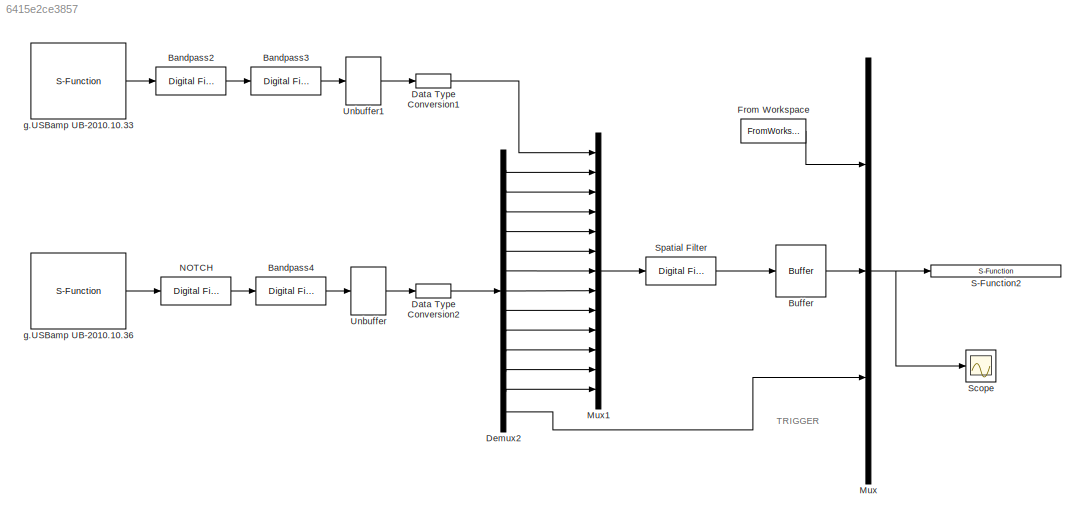
MODEL slx_6415e2ce3857
KIND model
BLOCK [Reference] Bandpass2  REF=dsparch4/Digital Filter
  AllPoleFiltStruct = Direct form
  BiQuadCoeffs = [1 0.3 0.4 1 0.1 0.2]
  CoeffSource = Specify via dialog
  DenCoeffs = [1 0.1]
  FIRFiltStruct = Direct form
  FiltPerSampPopup = One filter per frame
  FilterSource = dfilt object
  IC = 0
  ICden = 0
  ICnum = 0
  IIRFiltStruct = Direct form II transposed
  InputProcessing = Inherited (this choice will be removed - see release notes)
  LatticeCoeffs = [0.2 0.4]
  LockScale = off
  NumCoeffs = [1 2]
  Ports = [1, 1]
  ScaleValues = 1
  SourceBlock = dsparch4/Digital Filter
  SourceType = Digital Filter
  TypePopup = IIR (poles & zeros)
  UserDataPersistent = on
  accumFracLength = 30
  accumMode = Same as product output
  accumWordLength = 32
  additionalParams = off
  allowOverrides = on
  denIgnore = on
  dfiltObjectName = HdNotch
  firstCoeffFracLength = 15
  firstCoeffMode = Same word length as input
  firstCoeffWordLength = 16
  memoryFracLength = 15
  memoryMode = Same as accumulator
  memoryWordLength = 16
  multiplicandFracLength = 30
  multiplicandMode = Same as output
  multiplicandWordLength = 32
  outputFracLength = 15
  outputMode = Same as accumulator
  outputWordLength = 16
  overflowMode = off
  prodOutputFracLength = 30
  prodOutputMode = Same as input
  prodOutputWordLength = 32
  roundingMode = Floor
  scaleValueFracLength = 14
  secondCoeffFracLength = 15
  secondCoeffMode = Same as numerator
  secondCoeffWordLength = 16
  showAcc = off
  showCoeff = off
  showMem = off
  showMpy = off
  showOut = off
  stageIOMode = Same as input
  stageIOWordLength = 16
  stageInFracLength = 15
  stageOutFracLength = 15
  tapSumFracLength = 30
  tapSumMode = Same as input
  tapSumWordLength = 32
  thirdCoeffFracLength = 15
  thirdCoeffMode = Same as input
  thirdCoeffWordLength = 16
BLOCK [Reference] Bandpass3  REF=dsparch4/Digital Filter
  AllPoleFiltStruct = Direct form
  BiQuadCoeffs = [1 0.3 0.4 1 0.1 0.2]
  CoeffSource = Specify via dialog
  DenCoeffs = [1 0.1]
  FIRFiltStruct = Direct form
  FiltPerSampPopup = One filter per frame
  FilterSource = dfilt object
  IC = 0
  ICden = 0
  ICnum = 0
  IIRFiltStruct = Direct form II transposed
  InputProcessing = Inherited (this choice will be removed - see release notes)
  LatticeCoeffs = [0.2 0.4]
  LockScale = off
  NumCoeffs = [1 2]
  Ports = [1, 1]
  ScaleValues = 1
  SourceBlock = dsparch4/Digital Filter
  SourceType = Digital Filter
  TypePopup = IIR (poles & zeros)
  UserDataPersistent = on
  accumFracLength = 30
  accumMode = Same as product output
  accumWordLength = 32
  additionalParams = off
  allowOverrides = on
  denIgnore = on
  dfiltObjectName = BP_SEP
  firstCoeffFracLength = 15
  firstCoeffMode = Same word length as input
  firstCoeffWordLength = 16
  memoryFracLength = 15
  memoryMode = Same as accumulator
  memoryWordLength = 16
  multiplicandFracLength = 30
  multiplicandMode = Same as output
  multiplicandWordLength = 32
  outputFracLength = 15
  outputMode = Same as accumulator
  outputWordLength = 16
  overflowMode = off
  prodOutputFracLength = 30
  prodOutputMode = Same as input
  prodOutputWordLength = 32
  roundingMode = Floor
  scaleValueFracLength = 14
  secondCoeffFracLength = 15
  secondCoeffMode = Same as numerator
  secondCoeffWordLength = 16
  showAcc = off
  showCoeff = off
  showMem = off
  showMpy = off
  showOut = off
  stageIOMode = Same as input
  stageIOWordLength = 16
  stageInFracLength = 15
  stageOutFracLength = 15
  tapSumFracLength = 30
  tapSumMode = Same as input
  tapSumWordLength = 32
  thirdCoeffFracLength = 15
  thirdCoeffMode = Same as input
  thirdCoeffWordLength = 16
BLOCK [Reference] Bandpass4  REF=dsparch4/Digital Filter
  AllPoleFiltStruct = Direct form
  BiQuadCoeffs = [1 0.3 0.4 1 0.1 0.2]
  CoeffSource = Specify via dialog
  DenCoeffs = [1 0.1]
  FIRFiltStruct = Direct form
  FiltPerSampPopup = One filter per frame
  FilterSource = dfilt object
  IC = 0
  ICden = 0
  ICnum = 0
  IIRFiltStruct = Direct form II transposed
  InputProcessing = Inherited (this choice will be removed - see release notes)
  LatticeCoeffs = [0.2 0.4]
  LockScale = off
  NumCoeffs = [1 2]
  Ports = [1, 1]
  ScaleValues = 1
  SourceBlock = dsparch4/Digital Filter
  SourceType = Digital Filter
  TypePopup = IIR (poles & zeros)
  UserDataPersistent = on
  accumFracLength = 30
  accumMode = Same as product output
  accumWordLength = 32
  additionalParams = off
  allowOverrides = on
  denIgnore = on
  dfiltObjectName = BP_SEP
  firstCoeffFracLength = 15
  firstCoeffMode = Same word length as input
  firstCoeffWordLength = 16
  memoryFracLength = 15
  memoryMode = Same as accumulator
  memoryWordLength = 16
  multiplicandFracLength = 30
  multiplicandMode = Same as output
  multiplicandWordLength = 32
  outputFracLength = 15
  outputMode = Same as accumulator
  outputWordLength = 16
  overflowMode = off
  prodOutputFracLength = 30
  prodOutputMode = Same as input
  prodOutputWordLength = 32
  roundingMode = Floor
  scaleValueFracLength = 14
  secondCoeffFracLength = 15
  secondCoeffMode = Same as numerator
  secondCoeffWordLength = 16
  showAcc = off
  showCoeff = off
  showMem = off
  showMpy = off
  showOut = off
  stageIOMode = Same as input
  stageIOWordLength = 16
  stageInFracLength = 15
  stageOutFracLength = 15
  tapSumFracLength = 30
  tapSumMode = Same as input
  tapSumWordLength = 32
  thirdCoeffFracLength = 15
  thirdCoeffMode = Same as input
  thirdCoeffWordLength = 16
BLOCK [Buffer] Buffer
  TreatMby1Signals = One channel
BLOCK [DataTypeConversion] Data Type Conversion1
  OutDataTypeStr = double
  RndMeth = Floor
  SaturateOnIntegerOverflow = off
BLOCK [DataTypeConversion] Data Type Conversion2
  OutDataTypeStr = double
  RndMeth = Floor
  SaturateOnIntegerOverflow = off
BLOCK [Demux] Demux2
  DisplayOption = bar
  Outputs = 13
  Ports = [1, 13]
BLOCK [FromWorkspace] From Workspace
  SampleTime = 1/2400
  VariableName = TEMPLATE
  ZeroCross = on
BLOCK [Mux] Mux
  DisplayOption = bar
  Inputs = 3
  Ports = [3, 1]
BLOCK [Mux] Mux1
  DisplayOption = bar
  Inputs = 13
  Ports = [13, 1]
BLOCK [Reference] NOTCH  REF=dsparch4/Digital Filter
  AllPoleFiltStruct = Direct form
  BiQuadCoeffs = [1 0.3 0.4 1 0.1 0.2]
  CoeffSource = Specify via dialog
  DenCoeffs = [1 0.1]
  FIRFiltStruct = Direct form
  FiltPerSampPopup = One filter per frame
  FilterSource = dfilt object
  IC = 0
  ICden = 0
  ICnum = 0
  IIRFiltStruct = Direct form II transposed
  InputProcessing = Inherited (this choice will be removed - see release notes)
  LatticeCoeffs = [0.2 0.4]
  LockScale = off
  NumCoeffs = [1 2]
  Ports = [1, 1]
  ScaleValues = 1
  SourceBlock = dsparch4/Digital Filter
  SourceType = Digital Filter
  TypePopup = IIR (poles & zeros)
  UserDataPersistent = on
  accumFracLength = 30
  accumMode = Same as product output
  accumWordLength = 32
  additionalParams = off
  allowOverrides = on
  denIgnore = on
  dfiltObjectName = HdNotch
  firstCoeffFracLength = 15
  firstCoeffMode = Same word length as input
  firstCoeffWordLength = 16
  memoryFracLength = 15
  memoryMode = Same as accumulator
  memoryWordLength = 16
  multiplicandFracLength = 30
  multiplicandMode = Same as output
  multiplicandWordLength = 32
  outputFracLength = 15
  outputMode = Same as accumulator
  outputWordLength = 16
  overflowMode = off
  prodOutputFracLength = 30
  prodOutputMode = Same as input
  prodOutputWordLength = 32
  roundingMode = Floor
  scaleValueFracLength = 14
  secondCoeffFracLength = 15
  secondCoeffMode = Same as numerator
  secondCoeffWordLength = 16
  showAcc = off
  showCoeff = off
  showMem = off
  showMpy = off
  showOut = off
  stageIOMode = Same as input
  stageIOWordLength = 16
  stageInFracLength = 15
  stageOutFracLength = 15
  tapSumFracLength = 30
  tapSumMode = Same as input
  tapSumWordLength = 32
  thirdCoeffFracLength = 15
  thirdCoeffMode = Same as input
  thirdCoeffWordLength = 16
BLOCK [S-Function] S-Function2
  EnableBusSupport = off
  FunctionName = S_Fun_ParadigmSEPs
  Ports = [1]
BLOCK [Scope] Scope
  DataFormat = StructureWithTime
  Floating = off
  NumInputPorts = 1
  Ports = [1]
  SampleTime = 0
  SaveName = ScopeData1
  ShowLegends = off
BLOCK [Reference] Spatial Filter  REF=dsparch4/Digital Filter
  AllPoleFiltStruct = Direct form
  BiQuadCoeffs = [1 0.3 0.4 1 0.1 0.2]
  CoeffSource = Specify via dialog
  DenCoeffs = [1 0.1]
  FIRFiltStruct = Direct form
  FiltPerSampPopup = One filter per frame
  FilterSource = dfilt object
  IC = 0
  ICden = 0
  ICnum = 0
  IIRFiltStruct = Direct form II transposed
  InputProcessing = Inherited (this choice will be removed - see release notes)
  LatticeCoeffs = [0.2 0.4]
  LockScale = off
  NumCoeffs = [1 2]
  Ports = [1, 1]
  ScaleValues = 1
  SourceBlock = dsparch4/Digital Filter
  SourceType = Digital Filter
  TypePopup = IIR (poles & zeros)
  UserDataPersistent = on
  accumFracLength = 30
  accumMode = Same as product output
  accumWordLength = 32
  additionalParams = off
  allowOverrides = on
  denIgnore = on
  dfiltObjectName = Spatial_SEP
  firstCoeffFracLength = 15
  firstCoeffMode = Same word length as input
  firstCoeffWordLength = 16
  memoryFracLength = 15
  memoryMode = Same as accumulator
  memoryWordLength = 16
  multiplicandFracLength = 30
  multiplicandMode = Same as output
  multiplicandWordLength = 32
  outputFracLength = 15
  outputMode = Same as accumulator
  outputWordLength = 16
  overflowMode = off
  prodOutputFracLength = 30
  prodOutputMode = Same as input
  prodOutputWordLength = 32
  roundingMode = Floor
  scaleValueFracLength = 14
  secondCoeffFracLength = 15
  secondCoeffMode = Same as numerator
  secondCoeffWordLength = 16
  showAcc = off
  showCoeff = off
  showMem = off
  showMpy = off
  showOut = off
  stageIOMode = Same as input
  stageIOWordLength = 16
  stageInFracLength = 15
  stageOutFracLength = 15
  tapSumFracLength = 30
  tapSumMode = Same as input
  tapSumWordLength = 32
  thirdCoeffFracLength = 15
  thirdCoeffMode = Same as input
  thirdCoeffWordLength = 16
BLOCK [Unbuffer] Unbuffer
  Ports = [1, 1]
BLOCK [Unbuffer] Unbuffer1
  Ports = [1, 1]
BLOCK [S-Function] g.USBamp UB-2010.10.33
  EnableBusSupport = off
  FunctionName = sf_gUSBamp
  OpenFcn = %gua_click   \ngua_block_cfg
  Parameters = cfg,snr
  Ports = [2, 1]
BLOCK [S-Function] g.USBamp UB-2010.10.36
  EnableBusSupport = off
  FunctionName = sf_gUSBamp
  OpenFcn = %gua_click   \ngua_block_cfg
  Parameters = cfg,snr
  Ports = [2, 1]
ANNOTATION (root): TRIGGER
LINE Bandpass2:1 -> Bandpass3:1
LINE Bandpass3:1 -> Unbuffer1:1
LINE Bandpass4:1 -> Unbuffer:1
LINE Buffer:1 -> Mux:2
LINE Data Type Conversion1:1 -> Mux1:1
LINE Data Type Conversion2:1 -> Demux2:1
LINE Demux2:1 -> Mux1:2
LINE Demux2:10 -> Mux1:11
LINE Demux2:11 -> Mux1:12
LINE Demux2:12 -> Mux1:13
LINE Demux2:13 -> Mux:3
LINE Demux2:2 -> Mux1:3
LINE Demux2:3 -> Mux1:4
LINE Demux2:4 -> Mux1:5
LINE Demux2:5 -> Mux1:6
LINE Demux2:6 -> Mux1:7
LINE Demux2:7 -> Mux1:8
LINE Demux2:8 -> Mux1:9
LINE Demux2:9 -> Mux1:10
LINE From Workspace:1 -> Mux:1
LINE Mux1:1 -> Spatial Filter:1
NET Mux:1 -> S-Function2:1, Scope:1
LINE NOTCH:1 -> Bandpass4:1
LINE Spatial Filter:1 -> Buffer:1
LINE Unbuffer1:1 -> Data Type Conversion1:1
LINE Unbuffer:1 -> Data Type Conversion2:1
LINE g.USBamp UB-2010.10.33:1 -> Bandpass2:1
LINE g.USBamp UB-2010.10.36:1 -> NOTCH:1
note: NET lines group one-source signal fan-out (src -> all destinations, sorted); 1:1 wires keep LINE
